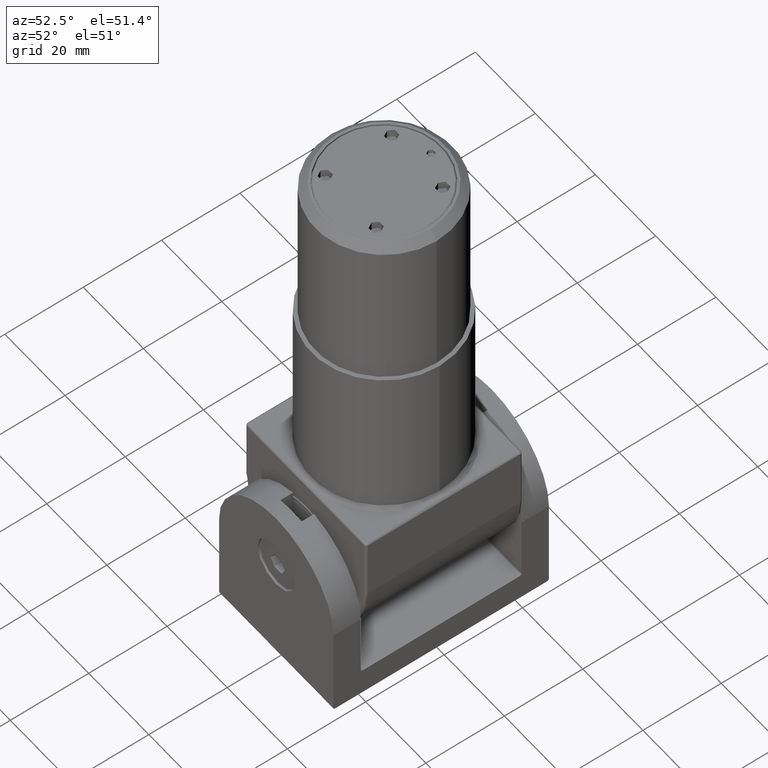
[diagram: clean part render]
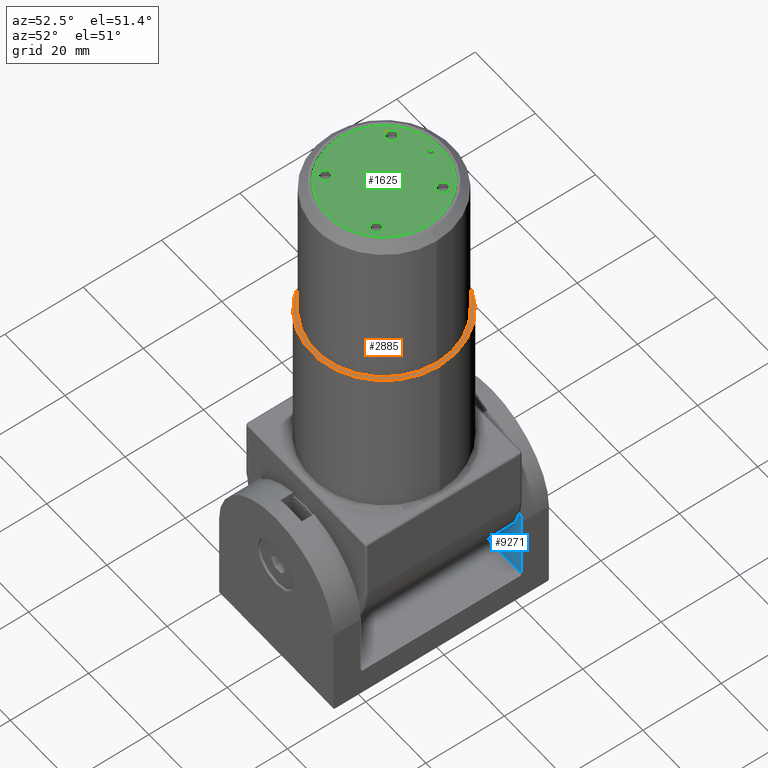
[diagram: same view with three faces highlighted in distinct colors, each labeled with its STEP entity id]
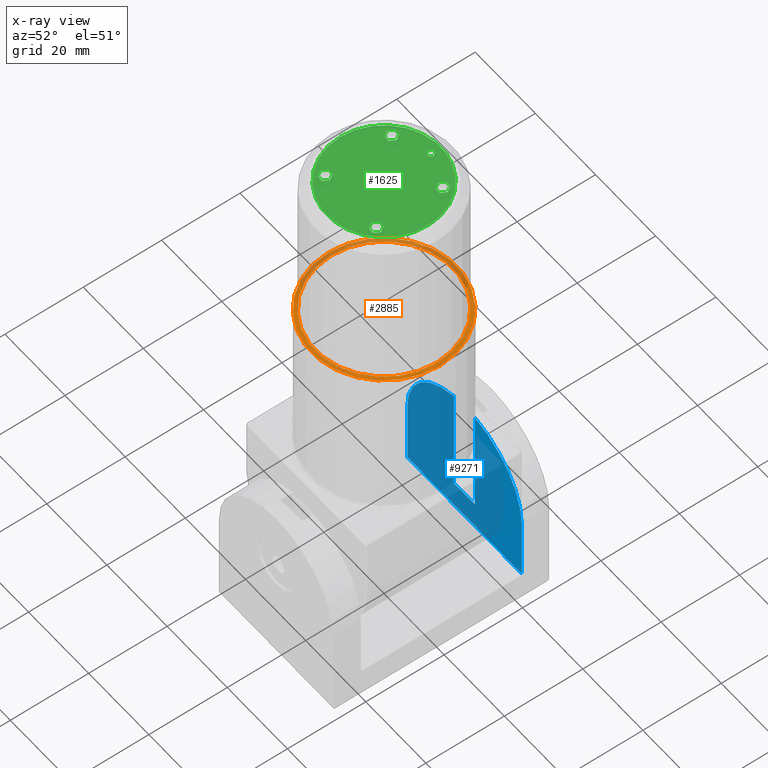
[diagram: x-ray of the same camera — body ghosted, the three highlighted faces saturated]
A machine part, auxiliary view with three faces highlighted in distinct colors.
The next image is the same camera in x-ray (body ghosted, the three faces saturated) — at least one of them is partly hidden behind the body in this view.
Their STEP definitions:

[orange] entity #2885 — the highlighted planar face has unit normal (0, 0, -1).
#31 = ORIENTED_EDGE ( 'NONE', *, *, #1454, .F. ) ;
#125 = CARTESIAN_POINT ( 'NONE',  ( 0.000000000000000000, 0.000000000000000000, 41.50000000000000000 ) ) ;
#448 = CARTESIAN_POINT ( 'NONE',  ( -17.50000000000000355, 2.143131898507868643E-15, 41.49999999999999289 ) ) ;
#1454 = EDGE_CURVE ( 'NONE', #8374, #14416, #13288, .T. ) ;
#2885 = ADVANCED_FACE ( 'NONE', ( #6320, #7432 ), #9596, .F. ) ;
#3514 = VERTEX_POINT ( 'NONE', #16124 ) ;
#3863 = DIRECTION ( 'NONE',  ( -1.000000000000000000, 0.000000000000000000, 0.000000000000000000 ) ) ;
#4326 = DIRECTION ( 'NONE',  ( 0.000000000000000000, 0.000000000000000000, -1.000000000000000000 ) ) ;
#4929 = EDGE_LOOP ( 'NONE', ( #12475, #7608 ) ) ;
#5096 = EDGE_CURVE ( 'NONE', #14416, #8374, #5696, .T. ) ;
#5397 = CARTESIAN_POINT ( 'NONE',  ( 0.000000000000000000, 0.000000000000000000, 41.50000000000000000 ) ) ;
#5696 = CIRCLE ( 'NONE', #11591, 18.50000000000000000 ) ;
#5741 = DIRECTION ( 'NONE',  ( 0.000000000000000000, 0.000000000000000000, -1.000000000000000000 ) ) ;
#5881 = DIRECTION ( 'NONE',  ( -0.000000000000000000, -0.000000000000000000, 1.000000000000000000 ) ) ;
#6320 = FACE_BOUND ( 'NONE', #4929, .T. ) ;
#7432 = FACE_OUTER_BOUND ( 'NONE', #21088, .T. ) ;
#7608 = ORIENTED_EDGE ( 'NONE', *, *, #15213, .F. ) ;
#7719 = CIRCLE ( 'NONE', #18163, 17.50000000000000355 ) ;
#7972 = CARTESIAN_POINT ( 'NONE',  ( -18.50000000000000000, 0.000000000000000000, 41.50000000000000000 ) ) ;
#8374 = VERTEX_POINT ( 'NONE', #7972 ) ;
#8815 = CARTESIAN_POINT ( 'NONE',  ( 18.50000000000000000, 2.265596578422603396E-15, 41.50000000000000000 ) ) ;
#9449 = DIRECTION ( 'NONE',  ( -1.000000000000000000, 0.000000000000000000, 0.000000000000000000 ) ) ;
#9571 = CARTESIAN_POINT ( 'NONE',  ( 0.000000000000000000, 0.000000000000000000, 41.49999999999999289 ) ) ;
#9596 = PLANE ( 'NONE',  #15609 ) ;
#10334 = AXIS2_PLACEMENT_3D ( 'NONE', #9571, #14779, #13220 ) ;
#10793 = CIRCLE ( 'NONE', #10334, 17.50000000000000355 ) ;
#11591 = AXIS2_PLACEMENT_3D ( 'NONE', #125, #5741, #18171 ) ;
#12475 = ORIENTED_EDGE ( 'NONE', *, *, #14930, .F. ) ;
#13220 = DIRECTION ( 'NONE',  ( -1.000000000000000000, 0.000000000000000000, 0.000000000000000000 ) ) ;
#13288 = CIRCLE ( 'NONE', #21396, 18.50000000000000000 ) ;
#13877 = VERTEX_POINT ( 'NONE', #448 ) ;
#14178 = ORIENTED_EDGE ( 'NONE', *, *, #5096, .F. ) ;
#14416 = VERTEX_POINT ( 'NONE', #8815 ) ;
#14779 = DIRECTION ( 'NONE',  ( -0.000000000000000000, -0.000000000000000000, 1.000000000000000000 ) ) ;
#14873 = CARTESIAN_POINT ( 'NONE',  ( 0.000000000000000000, 0.000000000000000000, 41.49999999999999289 ) ) ;
#14930 = EDGE_CURVE ( 'NONE', #3514, #13877, #7719, .T. ) ;
#14951 = CARTESIAN_POINT ( 'NONE',  ( -20.00000000000000000, 20.00000000000000000, 41.50000000000000000 ) ) ;
#15213 = EDGE_CURVE ( 'NONE', #13877, #3514, #10793, .T. ) ;
#15609 = AXIS2_PLACEMENT_3D ( 'NONE', #14951, #4326, #18530 ) ;
#16124 = CARTESIAN_POINT ( 'NONE',  ( 17.50000000000000355, 0.000000000000000000, 41.49999999999999289 ) ) ;
#17890 = DIRECTION ( 'NONE',  ( 0.000000000000000000, 0.000000000000000000, -1.000000000000000000 ) ) ;
#18163 = AXIS2_PLACEMENT_3D ( 'NONE', #14873, #5881, #9449 ) ;
#18171 = DIRECTION ( 'NONE',  ( -1.000000000000000000, 0.000000000000000000, 0.000000000000000000 ) ) ;
#18530 = DIRECTION ( 'NONE',  ( -1.000000000000000000, 0.000000000000000000, -0.000000000000000000 ) ) ;
#21088 = EDGE_LOOP ( 'NONE', ( #31, #14178 ) ) ;
#21396 = AXIS2_PLACEMENT_3D ( 'NONE', #5397, #17890, #3863 ) ;

[blue] entity #9271 — the highlighted planar face has unit normal (0, 1, 0).
#14 = VERTEX_POINT ( 'NONE', #5927 ) ;
#152 = FACE_OUTER_BOUND ( 'NONE', #14598, .T. ) ;
#287 = CARTESIAN_POINT ( 'NONE',  ( -3.500000000000000000, 20.49999999999999645, 42.67484939698309887 ) ) ;
#517 = VECTOR ( 'NONE', #4393, 1000.000000000000000 ) ;
#750 = LINE ( 'NONE', #8355, #11861 ) ;
#794 = EDGE_CURVE ( 'NONE', #19017, #9876, #19196, .T. ) ;
#797 = ORIENTED_EDGE ( 'NONE', *, *, #9101, .T. ) ;
#914 = AXIS2_PLACEMENT_3D ( 'NONE', #2009, #3776, #18123 ) ;
#980 = ORIENTED_EDGE ( 'NONE', *, *, #12373, .T. ) ;
#1418 = DIRECTION ( 'NONE',  ( 0.000000000000000000, 0.000000000000000000, 1.000000000000000000 ) ) ;
#1635 = DIRECTION ( 'NONE',  ( 0.000000000000000000, 0.000000000000000000, -1.000000000000000000 ) ) ;
#1732 = LINE ( 'NONE', #19681, #18096 ) ;
#2009 = CARTESIAN_POINT ( 'NONE',  ( 0.000000000000000000, 20.50000000000000000, 23.99999999999999645 ) ) ;
#3336 = ORIENTED_EDGE ( 'NONE', *, *, #6054, .T. ) ;
#3776 = DIRECTION ( 'NONE',  ( 0.000000000000000000, -1.000000000000000000, -0.000000000000000000 ) ) ;
#4281 = CARTESIAN_POINT ( 'NONE',  ( 19.00000000000000000, 20.50000000000000000, 7.499999999999992895 ) ) ;
#4393 = DIRECTION ( 'NONE',  ( 0.000000000000000000, 0.000000000000000000, -1.000000000000000000 ) ) ;
#4404 = VECTOR ( 'NONE', #16204, 1000.000000000000000 ) ;
#4879 = CARTESIAN_POINT ( 'NONE',  ( -19.00000000000000000, 20.50000000000000000, 43.00000000000000000 ) ) ;
#4904 = VERTEX_POINT ( 'NONE', #8641 ) ;
#5234 = ORIENTED_EDGE ( 'NONE', *, *, #19440, .F. ) ;
#5299 = AXIS2_PLACEMENT_3D ( 'NONE', #13645, #10009, #1418 ) ;
#5412 = B_SPLINE_CURVE_WITH_KNOTS ( 'NONE', 3,
 ( #21807, #12877, #14807, #13094 ),
 .UNSPECIFIED., .F., .F.,
 ( 4, 4 ),
 ( 0.000000000000000000, 1.000000000000000000 ),
 .UNSPECIFIED. ) ;
#5543 = DIRECTION ( 'NONE',  ( 0.000000000000000000, 0.000000000000000000, 1.000000000000000000 ) ) ;
#5684 = DIRECTION ( 'NONE',  ( -0.000000000000000000, 1.000000000000000000, 0.000000000000000000 ) ) ;
#5927 = CARTESIAN_POINT ( 'NONE',  ( 3.500000000000000000, 20.49999999999999645, 14.49999999999999467 ) ) ;
#5940 = VECTOR ( 'NONE', #15342, 1000.000000000000000 ) ;
#6054 = EDGE_CURVE ( 'NONE', #22720, #14, #11914, .T. ) ;
#6158 = CARTESIAN_POINT ( 'NONE',  ( 3.499999999999999556, 20.49999999999999645, 42.67484939698309887 ) ) ;
#7543 = AXIS2_PLACEMENT_3D ( 'NONE', #19764, #5684, #14323 ) ;
#8355 = CARTESIAN_POINT ( 'NONE',  ( 19.00000000000000000, 20.50000000000000000, 43.00000000000000000 ) ) ;
#8638 = CARTESIAN_POINT ( 'NONE',  ( -3.500000000000000000, 20.49999999999999645, 14.49999999999999467 ) ) ;
#8641 = CARTESIAN_POINT ( 'NONE',  ( 19.00000000000000000, 20.50000000000000000, 23.99999999999999645 ) ) ;
#9101 = EDGE_CURVE ( 'NONE', #9876, #19325, #20106, .T. ) ;
#9130 = CARTESIAN_POINT ( 'NONE',  ( 19.00000000000000000, 20.50000000000000000, 7.499999999999991118 ) ) ;
#9188 = ORIENTED_EDGE ( 'NONE', *, *, #12335, .T. ) ;
#9271 = ADVANCED_FACE ( 'NONE', ( #152 ), #10605, .F. ) ;
#9833 = CARTESIAN_POINT ( 'NONE',  ( -19.00000000000000000, 20.50000000000000000, 7.499999999999992895 ) ) ;
#9876 = VERTEX_POINT ( 'NONE', #17959 ) ;
#10009 = DIRECTION ( 'NONE',  ( 0.000000000000000000, -1.000000000000000000, -0.000000000000000000 ) ) ;
#10605 = PLANE ( 'NONE',  #7543 ) ;
#11861 = VECTOR ( 'NONE', #1635, 1000.000000000000000 ) ;
#11914 = LINE ( 'NONE', #16733, #517 ) ;
#12335 = EDGE_CURVE ( 'NONE', #4904, #22720, #16420, .T. ) ;
#12373 = EDGE_CURVE ( 'NONE', #18841, #19017, #1732, .T. ) ;
#12877 = CARTESIAN_POINT ( 'NONE',  ( 1.166666666666666519, 20.50000000000000000, 14.49999999999999467 ) ) ;
#12996 = LINE ( 'NONE', #9130, #4404 ) ;
#13094 = CARTESIAN_POINT ( 'NONE',  ( -3.500000000000000000, 20.49999999999999645, 14.49999999999999467 ) ) ;
#13645 = CARTESIAN_POINT ( 'NONE',  ( 0.000000000000000000, 20.50000000000000000, 23.99999999999999645 ) ) ;
#14323 = DIRECTION ( 'NONE',  ( 0.000000000000000000, -0.000000000000000000, 1.000000000000000000 ) ) ;
#14512 = VERTEX_POINT ( 'NONE', #4281 ) ;
#14598 = EDGE_LOOP ( 'NONE', ( #9188, #3336, #14944, #980, #17883, #797, #16160, #5234 ) ) ;
#14807 = CARTESIAN_POINT ( 'NONE',  ( -1.166666666666666519, 20.50000000000000000, 14.49999999999999467 ) ) ;
#14899 = EDGE_CURVE ( 'NONE', #14, #18841, #5412, .T. ) ;
#14944 = ORIENTED_EDGE ( 'NONE', *, *, #14899, .T. ) ;
#15342 = DIRECTION ( 'NONE',  ( 0.000000000000000000, 0.000000000000000000, -1.000000000000000000 ) ) ;
#16160 = ORIENTED_EDGE ( 'NONE', *, *, #17874, .T. ) ;
#16204 = DIRECTION ( 'NONE',  ( 1.000000000000000000, -0.000000000000000000, -0.000000000000000000 ) ) ;
#16420 = CIRCLE ( 'NONE', #914, 19.00000000000000000 ) ;
#16733 = CARTESIAN_POINT ( 'NONE',  ( 3.499999999999999556, 20.50000000000000000, 43.00000000000000000 ) ) ;
#17874 = EDGE_CURVE ( 'NONE', #19325, #14512, #12996, .T. ) ;
#17883 = ORIENTED_EDGE ( 'NONE', *, *, #794, .T. ) ;
#17959 = CARTESIAN_POINT ( 'NONE',  ( -19.00000000000000000, 20.50000000000000000, 23.99999999999999645 ) ) ;
#18096 = VECTOR ( 'NONE', #5543, 1000.000000000000000 ) ;
#18123 = DIRECTION ( 'NONE',  ( -1.776356839400250465E-15, 0.000000000000000000, 1.000000000000000000 ) ) ;
#18841 = VERTEX_POINT ( 'NONE', #8638 ) ;
#19017 = VERTEX_POINT ( 'NONE', #287 ) ;
#19196 = CIRCLE ( 'NONE', #5299, 19.00000000000000000 ) ;
#19325 = VERTEX_POINT ( 'NONE', #9833 ) ;
#19440 = EDGE_CURVE ( 'NONE', #4904, #14512, #750, .T. ) ;
#19681 = CARTESIAN_POINT ( 'NONE',  ( -3.499999999999999556, 20.50000000000000000, 43.00000000000000000 ) ) ;
#19764 = CARTESIAN_POINT ( 'NONE',  ( 19.00000000000000000, 20.50000000000000000, 43.00000000000000000 ) ) ;
#20106 = LINE ( 'NONE', #4879, #5940 ) ;
#21807 = CARTESIAN_POINT ( 'NONE',  ( 3.500000000000000000, 20.49999999999999645, 14.49999999999999467 ) ) ;
#22720 = VERTEX_POINT ( 'NONE', #6158 ) ;

[green] entity #1625 — the highlighted planar face has unit normal (0, 0, 1).
#201 = CIRCLE ( 'NONE', #19052, 1.550000000000000933 ) ;
#295 = AXIS2_PLACEMENT_3D ( 'NONE', #21483, #7192, #10698 ) ;
#298 = CIRCLE ( 'NONE', #20863, 1.550000000000000933 ) ;
#705 = DIRECTION ( 'NONE',  ( 0.000000000000000000, 0.000000000000000000, 1.000000000000000000 ) ) ;
#1043 = DIRECTION ( 'NONE',  ( 1.000000000000000000, 0.000000000000000000, -0.000000000000000000 ) ) ;
#1198 = DIRECTION ( 'NONE',  ( 0.000000000000000000, 0.000000000000000000, 1.000000000000000000 ) ) ;
#1498 = EDGE_CURVE ( 'NONE', #5200, #14963, #9416, .T. ) ;
#1625 = ADVANCED_FACE ( 'NONE', ( #12752, #4982, #22484, #14422, #18873, #17755 ), #8304, .T. ) ;
#1737 = DIRECTION ( 'NONE',  ( 1.000000000000000000, 0.000000000000000000, 0.000000000000000000 ) ) ;
#1793 = EDGE_CURVE ( 'NONE', #1797, #20289, #7194, .T. ) ;
#1797 = VERTEX_POINT ( 'NONE', #9919 ) ;
#1811 = DIRECTION ( 'NONE',  ( 0.000000000000000000, 0.000000000000000000, 1.000000000000000000 ) ) ;
#1825 = EDGE_LOOP ( 'NONE', ( #13701, #9563 ) ) ;
#2084 = CIRCLE ( 'NONE', #16495, 1.550000000000000933 ) ;
#2241 = EDGE_LOOP ( 'NONE', ( #7372, #22832 ) ) ;
#2730 = EDGE_CURVE ( 'NONE', #15324, #13148, #19388, .T. ) ;
#2772 = CARTESIAN_POINT ( 'NONE',  ( 14.50000000000002665, 1.791045943753005880E-15, 83.00000000000000000 ) ) ;
#2782 = AXIS2_PLACEMENT_3D ( 'NONE', #21563, #7493, #7569 ) ;
#2870 = EDGE_LOOP ( 'NONE', ( #3480, #19913 ) ) ;
#2888 = CARTESIAN_POINT ( 'NONE',  ( 6.935281374238583929, -8.485281374238553553, 83.00000000000000000 ) ) ;
#2899 = DIRECTION ( 'NONE',  ( 0.000000000000000000, 0.000000000000000000, 1.000000000000000000 ) ) ;
#2957 = EDGE_CURVE ( 'NONE', #21777, #13380, #3566, .T. ) ;
#3061 = AXIS2_PLACEMENT_3D ( 'NONE', #8752, #10547, #5044 ) ;
#3171 = VERTEX_POINT ( 'NONE', #16436 ) ;
#3480 = ORIENTED_EDGE ( 'NONE', *, *, #13136, .T. ) ;
#3566 = CIRCLE ( 'NONE', #17989, 1.550000000000000933 ) ;
#4207 = VERTEX_POINT ( 'NONE', #21339 ) ;
#4481 = EDGE_CURVE ( 'NONE', #3171, #4207, #201, .T. ) ;
#4514 = CIRCLE ( 'NONE', #295, 1.550000000000000933 ) ;
#4707 = DIRECTION ( 'NONE',  ( 1.007258792502661639E-14, 1.000000000000000000, 0.000000000000000000 ) ) ;
#4837 = ORIENTED_EDGE ( 'NONE', *, *, #1793, .F. ) ;
#4957 = DIRECTION ( 'NONE',  ( 1.000000000000000000, 0.000000000000000000, 0.000000000000000000 ) ) ;
#4982 = FACE_BOUND ( 'NONE', #21581, .T. ) ;
#5044 = DIRECTION ( 'NONE',  ( -1.000000000000000000, 0.000000000000000000, 0.000000000000000000 ) ) ;
#5200 = VERTEX_POINT ( 'NONE', #13844 ) ;
#5994 = EDGE_CURVE ( 'NONE', #14963, #5200, #7431, .T. ) ;
#6162 = CARTESIAN_POINT ( 'NONE',  ( 10.03528137423858446, 8.485281374238555330, 83.00000000000000000 ) ) ;
#6285 = DIRECTION ( 'NONE',  ( 1.000000000000000000, 0.000000000000000000, 0.000000000000000000 ) ) ;
#6415 = CARTESIAN_POINT ( 'NONE',  ( -8.485281374238585528, 8.485281374238553553, 83.00000000000000000 ) ) ;
#7010 = ORIENTED_EDGE ( 'NONE', *, *, #1498, .F. ) ;
#7101 = AXIS2_PLACEMENT_3D ( 'NONE', #20314, #13239, #9761 ) ;
#7192 = DIRECTION ( 'NONE',  ( 0.000000000000000000, 0.000000000000000000, 1.000000000000000000 ) ) ;
#7194 = CIRCLE ( 'NONE', #7101, 1.550000000000000933 ) ;
#7205 = CARTESIAN_POINT ( 'NONE',  ( 0.000000000000000000, 0.000000000000000000, 83.00000000000000000 ) ) ;
#7325 = DIRECTION ( 'NONE',  ( 1.000000000000000000, 0.000000000000000000, 0.000000000000000000 ) ) ;
#7349 = CARTESIAN_POINT ( 'NONE',  ( -10.03528137423858624, 8.485281374238553553, 83.00000000000000000 ) ) ;
#7372 = ORIENTED_EDGE ( 'NONE', *, *, #22505, .F. ) ;
#7431 = CIRCLE ( 'NONE', #2782, 0.9499999999999890754 ) ;
#7493 = DIRECTION ( 'NONE',  ( -0.000000000000000000, -0.000000000000000000, 1.000000000000000000 ) ) ;
#7569 = DIRECTION ( 'NONE',  ( 1.000000000000000000, 0.000000000000000000, 0.000000000000000000 ) ) ;
#8304 = PLANE ( 'NONE',  #8609 ) ;
#8609 = AXIS2_PLACEMENT_3D ( 'NONE', #20730, #1198, #1043 ) ;
#8752 = CARTESIAN_POINT ( 'NONE',  ( 8.485281374238585528, -8.485281374238553553, 83.00000000000000000 ) ) ;
#9073 = DIRECTION ( 'NONE',  ( 0.000000000000000000, 0.000000000000000000, 1.000000000000000000 ) ) ;
#9261 = DIRECTION ( 'NONE',  ( -0.000000000000000000, -0.000000000000000000, 1.000000000000000000 ) ) ;
#9369 = CARTESIAN_POINT ( 'NONE',  ( 0.000000000000000000, 0.000000000000000000, 83.00000000000000000 ) ) ;
#9416 = CIRCLE ( 'NONE', #14378, 0.9499999999999890754 ) ;
#9563 = ORIENTED_EDGE ( 'NONE', *, *, #10073, .F. ) ;
#9651 = CIRCLE ( 'NONE', #20758, 1.550000000000000933 ) ;
#9761 = DIRECTION ( 'NONE',  ( -1.000000000000000000, 0.000000000000000000, 0.000000000000000000 ) ) ;
#9797 = CARTESIAN_POINT ( 'NONE',  ( 6.935281374238582153, 8.485281374238555330, 83.00000000000000000 ) ) ;
#9804 = CARTESIAN_POINT ( 'NONE',  ( 8.485281374238583751, 8.485281374238555330, 83.00000000000000000 ) ) ;
#9919 = CARTESIAN_POINT ( 'NONE',  ( 10.03528137423858624, -8.485281374238553553, 83.00000000000000000 ) ) ;
#9964 = ORIENTED_EDGE ( 'NONE', *, *, #4481, .F. ) ;
#10073 = EDGE_CURVE ( 'NONE', #13380, #21777, #2084, .T. ) ;
#10547 = DIRECTION ( 'NONE',  ( 0.000000000000000000, 0.000000000000000000, 1.000000000000000000 ) ) ;
#10698 = DIRECTION ( 'NONE',  ( -3.357529308342205333E-15, -1.000000000000000000, 0.000000000000000000 ) ) ;
#10794 = DIRECTION ( 'NONE',  ( 1.007258792502661639E-14, 1.000000000000000000, 0.000000000000000000 ) ) ;
#11553 = EDGE_LOOP ( 'NONE', ( #4837, #16834 ) ) ;
#11662 = EDGE_LOOP ( 'NONE', ( #13173, #9964 ) ) ;
#11852 = DIRECTION ( 'NONE',  ( 0.000000000000000000, 0.000000000000000000, 1.000000000000000000 ) ) ;
#11858 = VERTEX_POINT ( 'NONE', #6162 ) ;
#12201 = CIRCLE ( 'NONE', #3061, 1.550000000000000933 ) ;
#12752 = FACE_OUTER_BOUND ( 'NONE', #2870, .T. ) ;
#13048 = CIRCLE ( 'NONE', #21435, 14.50000000000002665 ) ;
#13136 = EDGE_CURVE ( 'NONE', #13148, #15324, #13048, .T. ) ;
#13148 = VERTEX_POINT ( 'NONE', #22741 ) ;
#13173 = ORIENTED_EDGE ( 'NONE', *, *, #14743, .F. ) ;
#13239 = DIRECTION ( 'NONE',  ( 0.000000000000000000, 0.000000000000000000, 1.000000000000000000 ) ) ;
#13380 = VERTEX_POINT ( 'NONE', #7349 ) ;
#13441 = DIRECTION ( 'NONE',  ( -3.357529308342205333E-15, -1.000000000000000000, 0.000000000000000000 ) ) ;
#13701 = ORIENTED_EDGE ( 'NONE', *, *, #2957, .F. ) ;
#13844 = CARTESIAN_POINT ( 'NONE',  ( 0.9499999999999890754, 12.00000000000000000, 83.00000000000000000 ) ) ;
#14378 = AXIS2_PLACEMENT_3D ( 'NONE', #14478, #9261, #7325 ) ;
#14422 = FACE_BOUND ( 'NONE', #11553, .T. ) ;
#14478 = CARTESIAN_POINT ( 'NONE',  ( 0.000000000000000000, 12.00000000000000000, 83.00000000000000000 ) ) ;
#14743 = EDGE_CURVE ( 'NONE', #4207, #3171, #298, .T. ) ;
#14754 = CARTESIAN_POINT ( 'NONE',  ( -6.935281374238583929, 8.485281374238553553, 83.00000000000000000 ) ) ;
#14963 = VERTEX_POINT ( 'NONE', #18534 ) ;
#14990 = DIRECTION ( 'NONE',  ( 0.000000000000000000, 0.000000000000000000, 1.000000000000000000 ) ) ;
#15324 = VERTEX_POINT ( 'NONE', #2772 ) ;
#15569 = CARTESIAN_POINT ( 'NONE',  ( -8.485281374238642371, -8.485281374238496710, 83.00000000000000000 ) ) ;
#15587 = DIRECTION ( 'NONE',  ( 0.000000000000000000, 0.000000000000000000, 1.000000000000000000 ) ) ;
#15677 = VERTEX_POINT ( 'NONE', #9797 ) ;
#16436 = CARTESIAN_POINT ( 'NONE',  ( -10.03528137423864308, -8.485281374238496710, 83.00000000000000000 ) ) ;
#16495 = AXIS2_PLACEMENT_3D ( 'NONE', #20581, #2899, #6285 ) ;
#16834 = ORIENTED_EDGE ( 'NONE', *, *, #17771, .F. ) ;
#17755 = FACE_BOUND ( 'NONE', #1825, .T. ) ;
#17771 = EDGE_CURVE ( 'NONE', #20289, #1797, #12201, .T. ) ;
#17942 = AXIS2_PLACEMENT_3D ( 'NONE', #9369, #705, #21956 ) ;
#17989 = AXIS2_PLACEMENT_3D ( 'NONE', #6415, #15587, #4957 ) ;
#18483 = EDGE_CURVE ( 'NONE', #15677, #11858, #9651, .T. ) ;
#18534 = CARTESIAN_POINT ( 'NONE',  ( -0.9499999999999890754, 12.00000000000000000, 83.00000000000000000 ) ) ;
#18817 = ORIENTED_EDGE ( 'NONE', *, *, #5994, .F. ) ;
#18873 = FACE_BOUND ( 'NONE', #11662, .T. ) ;
#19052 = AXIS2_PLACEMENT_3D ( 'NONE', #15569, #11852, #4707 ) ;
#19388 = CIRCLE ( 'NONE', #17942, 14.50000000000002665 ) ;
#19913 = ORIENTED_EDGE ( 'NONE', *, *, #2730, .T. ) ;
#20289 = VERTEX_POINT ( 'NONE', #2888 ) ;
#20314 = CARTESIAN_POINT ( 'NONE',  ( 8.485281374238585528, -8.485281374238553553, 83.00000000000000000 ) ) ;
#20581 = CARTESIAN_POINT ( 'NONE',  ( -8.485281374238585528, 8.485281374238553553, 83.00000000000000000 ) ) ;
#20730 = CARTESIAN_POINT ( 'NONE',  ( 0.000000000000000000, 0.000000000000000000, 83.00000000000000000 ) ) ;
#20758 = AXIS2_PLACEMENT_3D ( 'NONE', #9804, #14990, #13441 ) ;
#20863 = AXIS2_PLACEMENT_3D ( 'NONE', #21503, #9073, #10794 ) ;
#21339 = CARTESIAN_POINT ( 'NONE',  ( -6.935281374238641661, -8.485281374238496710, 83.00000000000000000 ) ) ;
#21435 = AXIS2_PLACEMENT_3D ( 'NONE', #7205, #1811, #1737 ) ;
#21483 = CARTESIAN_POINT ( 'NONE',  ( 8.485281374238583751, 8.485281374238555330, 83.00000000000000000 ) ) ;
#21503 = CARTESIAN_POINT ( 'NONE',  ( -8.485281374238642371, -8.485281374238496710, 83.00000000000000000 ) ) ;
#21563 = CARTESIAN_POINT ( 'NONE',  ( 0.000000000000000000, 12.00000000000000000, 83.00000000000000000 ) ) ;
#21581 = EDGE_LOOP ( 'NONE', ( #7010, #18817 ) ) ;
#21777 = VERTEX_POINT ( 'NONE', #14754 ) ;
#21956 = DIRECTION ( 'NONE',  ( 1.000000000000000000, 0.000000000000000000, 0.000000000000000000 ) ) ;
#22484 = FACE_BOUND ( 'NONE', #2241, .T. ) ;
#22505 = EDGE_CURVE ( 'NONE', #11858, #15677, #4514, .T. ) ;
#22741 = CARTESIAN_POINT ( 'NONE',  ( -14.50000000000002665, 0.000000000000000000, 83.00000000000000000 ) ) ;
#22832 = ORIENTED_EDGE ( 'NONE', *, *, #18483, .F. ) ;